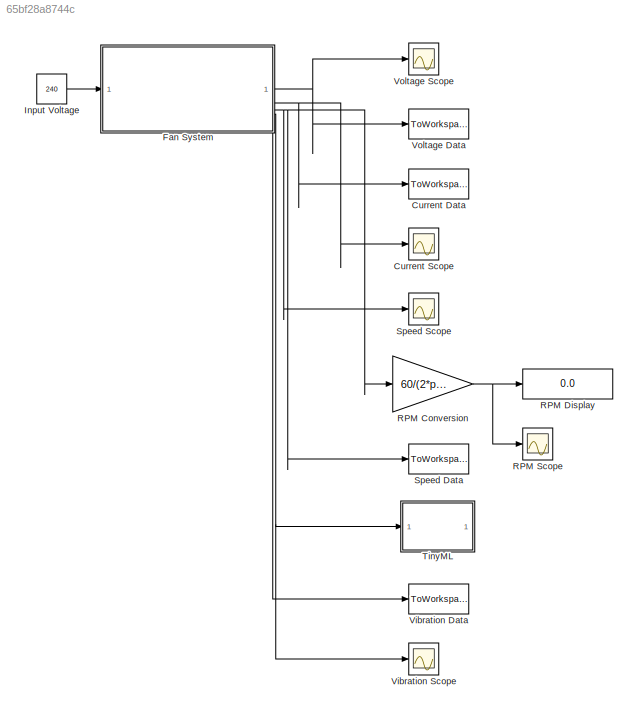
MODEL slx_65bf28a8744c
KIND model
CONFIG AbsTol = 1e-4
CONFIG EnableMultiTasking = off
CONFIG FixedStep = auto
CONFIG MaxStep = 0.001
CONFIG MinStep = auto
CONFIG RelTol = 1e-4
CONFIG SampleTimeConstraint = Unconstrained
CONFIG SolverName = ode23t
CONFIG StartTime = 0.0
CONFIG StopTime = 30
BLOCK [ToWorkspace] Current Data
  FixptAsFi = on
  MaxDataPoints = inf
  SampleTime = 0.001
  SaveFormat = Timeseries
  VariableName = current
BLOCK [Scope] Current Scope
  Floating = off
  NumInputPorts = 1
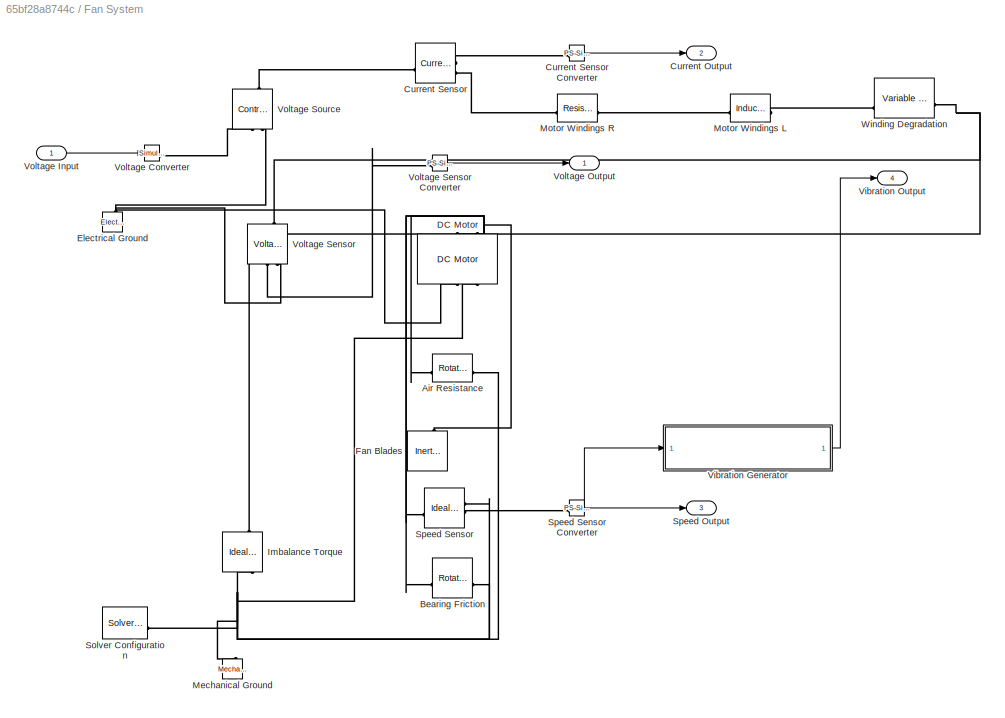
BLOCK [SubSystem] Fan System
BLOCK [Reference] Fan System/Air Resistance  REF=fl_lib/Mechanical/Rotational Elements/Rotational Damper
  SourceBlock = fl_lib/Mechanical/Rotational Elements/Rotational Damper
  SourceType = Rotational Damper
BLOCK [Reference] Fan System/Bearing Friction  REF=fl_lib/Mechanical/Rotational Elements/Rotational Friction
  SourceBlock = fl_lib/Mechanical/Rotational Elements/Rotational Friction
  SourceType = Rotational Friction
BLOCK [Outport] Fan System/Current Output
  Port = 2
BLOCK [Reference] Fan System/Current Sensor  REF=fl_lib/Electrical/Electrical Sensors/Current Sensor
  SourceBlock = fl_lib/Electrical/Electrical Sensors/Current Sensor
  SourceType = Current Sensor
BLOCK [Reference] Fan System/Current Sensor Converter  REF=nesl_utility/PS-Simulink
Converter
  SourceBlock = nesl_utility/PS-Simulink\nConverter
  SourceType = PS-Simulink\nConverter
BLOCK [Reference] Fan System/DC Motor  REF=ee_lib/Electromechanical/Brushed Motors/DC Motor
  NameLocation = right
  SourceBlock = ee_lib/Electromechanical/Brushed Motors/DC Motor
  SourceType = DC Motor
BLOCK [Reference] Fan System/Electrical Ground  REF=fl_lib/Electrical/Electrical Elements/Electrical Reference
  NameLocation = right
  SourceBlock = fl_lib/Electrical/Electrical Elements/Electrical Reference
  SourceType = Electrical Reference
BLOCK [Reference] Fan System/Fan Blades  REF=fl_lib/Mechanical/Rotational Elements/Inertia
  NameLocation = right
  SourceBlock = fl_lib/Mechanical/Rotational Elements/Inertia
  SourceType = Inertia
BLOCK [Reference] Fan System/Imbalance Torque  REF=fl_lib/Mechanical/Mechanical Sources/Ideal Torque Source
  NameLocation = right
  SourceBlock = fl_lib/Mechanical/Mechanical Sources/Ideal Torque Source
  SourceType = Ideal Torque Source
BLOCK [Reference] Fan System/Mechanical Ground  REF=fl_lib/Mechanical/Rotational Elements/Mechanical
Rotational Reference
  NameLocation = right
  SourceBlock = fl_lib/Mechanical/Rotational Elements/Mechanical\nRotational Reference
  SourceType = Mechanical\nRotational Reference
BLOCK [Reference] Fan System/Motor Windings L  REF=fl_lib/Electrical/Electrical Elements/Inductor
  SourceBlock = fl_lib/Electrical/Electrical Elements/Inductor
  SourceType = Inductor
BLOCK [Reference] Fan System/Motor Windings R  REF=fl_lib/Electrical/Electrical Elements/Resistor
  SourceBlock = fl_lib/Electrical/Electrical Elements/Resistor
  SourceType = Resistor
BLOCK [Reference] Fan System/Solver Configuration  REF=nesl_utility/Solver
Configuration
  SourceBlock = nesl_utility/Solver\nConfiguration
  SourceType = Solver\nConfiguration
BLOCK [Outport] Fan System/Speed Output
  Port = 3
BLOCK [Reference] Fan System/Speed Sensor  REF=fl_lib/Mechanical/Mechanical Sensors/Ideal Rotational
Motion Sensor
  SourceBlock = fl_lib/Mechanical/Mechanical Sensors/Ideal Rotational\nMotion Sensor
  SourceType = Ideal Rotational\nMotion Sensor
BLOCK [Reference] Fan System/Speed Sensor Converter  REF=nesl_utility/PS-Simulink
Converter
  SourceBlock = nesl_utility/PS-Simulink\nConverter
  SourceType = PS-Simulink\nConverter
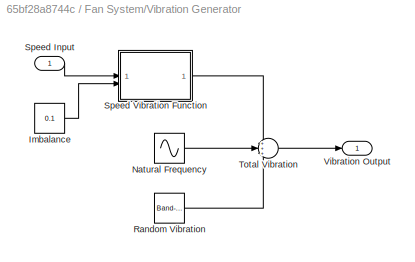
BLOCK [SubSystem] Fan System/Vibration Generator
BLOCK [Constant] Fan System/Vibration Generator/Imbalance
  Value = 0.1
BLOCK [Sin] Fan System/Vibration Generator/Natural Frequency
  Amplitude = 0.05
  Frequency = 50
  SampleTime = 0
BLOCK [Reference] Fan System/Vibration Generator/Random Vibration  REF=simulink/Sources/Band-Limited
White Noise
  SourceBlock = simulink/Sources/Band-Limited\nWhite Noise
  SourceType = Band-Limited White Noise.
BLOCK [Inport] Fan System/Vibration Generator/Speed Input
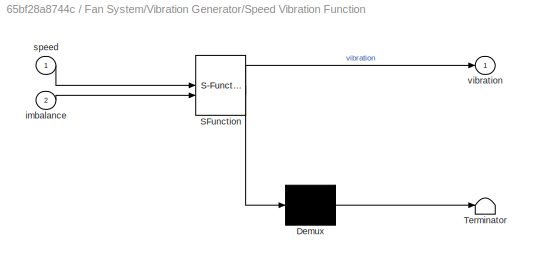
BLOCK [SubSystem] Fan System/Vibration Generator/Speed Vibration Function
  ErrorFcn = Stateflow.Translate.translate
  PermitHierarchicalResolution = ExplicitOnly
  SFBlockType = MATLAB Function
  TreatAsAtomicUnit = on
BLOCK [Demux] Fan System/Vibration Generator/Speed Vibration Function/ Demux 
  Outputs = 1
BLOCK [S-Function] Fan System/Vibration Generator/Speed Vibration Function/ SFunction 
  EnableBusSupport = off
  FunctionName = sf_sfun
  PortCounts = [2 2]
  SFcnIsStateOwnerBlock = off
  SFunctionDeploymentMode = off
  Tag = Stateflow S-Function 2
BLOCK [Terminator] Fan System/Vibration Generator/Speed Vibration Function/ Terminator 
BLOCK [Inport] Fan System/Vibration Generator/Speed Vibration Function/imbalance
  Port = 2
BLOCK [Inport] Fan System/Vibration Generator/Speed Vibration Function/speed
BLOCK [Outport] Fan System/Vibration Generator/Speed Vibration Function/vibration
BLOCK [Sum] Fan System/Vibration Generator/Total Vibration
  Inputs = +++
BLOCK [Outport] Fan System/Vibration Generator/Vibration Output
BLOCK [Outport] Fan System/Vibration Output
  Port = 4
BLOCK [Reference] Fan System/Voltage Converter  REF=nesl_utility/Simulink-PS
Converter
  SourceBlock = nesl_utility/Simulink-PS\nConverter
  SourceType = Simulink-PS\nConverter
BLOCK [Inport] Fan System/Voltage Input
BLOCK [Outport] Fan System/Voltage Output
BLOCK [Reference] Fan System/Voltage Sensor  REF=fl_lib/Electrical/Electrical Sensors/Voltage Sensor
  NameLocation = right
  SourceBlock = fl_lib/Electrical/Electrical Sensors/Voltage Sensor
  SourceType = Voltage Sensor
BLOCK [Reference] Fan System/Voltage Sensor Converter  REF=nesl_utility/PS-Simulink
Converter
  SourceBlock = nesl_utility/PS-Simulink\nConverter
  SourceType = PS-Simulink\nConverter
BLOCK [Reference] Fan System/Voltage Source  REF=fl_lib/Electrical/Electrical Sources/Controlled Voltage
Source
  NameLocation = right
  SourceBlock = fl_lib/Electrical/Electrical Sources/Controlled Voltage\nSource
  SourceType = Controlled Voltage\nSource
BLOCK [Reference] Fan System/Winding Degradation  REF=fl_lib/Electrical/Electrical Elements/Variable Resistor
  SourceBlock = fl_lib/Electrical/Electrical Elements/Variable Resistor
  SourceType = Variable Resistor
BLOCK [Constant] Input Voltage
  Value = 240
BLOCK [Gain] RPM Conversion
  Gain = 60/(2*pi)
BLOCK [Display] RPM Display
  Decimation = 1
BLOCK [Scope] RPM Scope
  Floating = off
  NumInputPorts = 1
BLOCK [ToWorkspace] Speed Data
  FixptAsFi = on
  MaxDataPoints = inf
  SampleTime = 0.001
  SaveFormat = Timeseries
  VariableName = speed
BLOCK [Scope] Speed Scope
  Floating = off
  NumInputPorts = 1
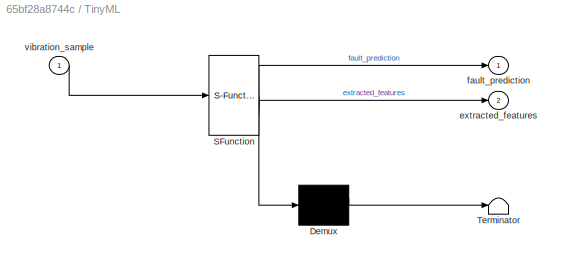
BLOCK [SubSystem] TinyML
  ErrorFcn = Stateflow.Translate.translate
  PermitHierarchicalResolution = ExplicitOnly
  SFBlockType = MATLAB Function
  TreatAsAtomicUnit = on
BLOCK [Demux] TinyML/ Demux 
  Outputs = 1
BLOCK [S-Function] TinyML/ SFunction 
  EnableBusSupport = off
  FunctionName = sf_sfun
  PortCounts = [1 3]
  SFcnIsStateOwnerBlock = off
  SFunctionDeploymentMode = off
  Tag = Stateflow S-Function 1
BLOCK [Terminator] TinyML/ Terminator 
BLOCK [Outport] TinyML/extracted_features
  Port = 2
BLOCK [Outport] TinyML/fault_prediction
BLOCK [Inport] TinyML/vibration_sample
BLOCK [ToWorkspace] Vibration Data
  FixptAsFi = on
  MaxDataPoints = inf
  SampleTime = 0.001
  SaveFormat = Timeseries
  VariableName = vibration
BLOCK [Scope] Vibration Scope
  Floating = off
  NumInputPorts = 1
BLOCK [ToWorkspace] Voltage Data
  FixptAsFi = on
  MaxDataPoints = inf
  SampleTime = 0.001
  SaveFormat = Timeseries
  VariableName = voltage
BLOCK [Scope] Voltage Scope
  Floating = off
  NumInputPorts = 1
LINE Fan System/Current Sensor Converter:1 -> Fan System/Current Output:1
NET Fan System/Speed Sensor Converter:1 -> Fan System/Speed Output:1, Fan System/Vibration Generator:1
LINE Fan System/Vibration Generator/Imbalance:1 -> Fan System/Vibration Generator/Speed Vibration Function:2
LINE Fan System/Vibration Generator/Natural Frequency:1 -> Fan System/Vibration Generator/Total Vibration:2
LINE Fan System/Vibration Generator/Random Vibration:1 -> Fan System/Vibration Generator/Total Vibration:3
LINE Fan System/Vibration Generator/Speed Input:1 -> Fan System/Vibration Generator/Speed Vibration Function:1
LINE Fan System/Vibration Generator/Speed Vibration Function:1 -> Fan System/Vibration Generator/Total Vibration:1
LINE Fan System/Vibration Generator/Total Vibration:1 -> Fan System/Vibration Generator/Vibration Output:1
LINE Fan System/Vibration Generator:1 -> Fan System/Vibration Output:1
LINE Fan System/Voltage Input:1 -> Fan System/Voltage Converter:1
LINE Fan System/Voltage Sensor Converter:1 -> Fan System/Voltage Output:1
NET Fan System:1 -> Voltage Data:1, Voltage Scope:1
NET Fan System:2 -> Current Data:1, Current Scope:1
NET Fan System:3 -> RPM Conversion:1, Speed Data:1, Speed Scope:1
NET Fan System:4 -> TinyML:1, Vibration Data:1, Vibration Scope:1
LINE Input Voltage:1 -> Fan System:1
NET RPM Conversion:1 -> RPM Display:1, RPM Scope:1
PNET net1: Fan System/Air Resistance:LConn1 -- Fan System/Bearing Friction:LConn1 -- Fan System/DC Motor:LConn2 -- Fan System/Fan Blades:LConn1 -- Fan System/Imbalance Torque:LConn1 -- Fan System/Speed Sensor:LConn1
PNET net2: Fan System/Air Resistance:RConn1 -- Fan System/Bearing Friction:RConn1 -- Fan System/DC Motor:RConn2 -- Fan System/Imbalance Torque:RConn2 -- Fan System/Mechanical Ground:LConn1 -- Fan System/Solver Configuration:RConn1 -- Fan System/Speed Sensor:RConn1
PLINE Fan System/Current Sensor Converter:LConn1 -- Fan System/Current Sensor:RConn1
PLINE Fan System/Current Sensor:LConn1 -- Fan System/Voltage Source:LConn1
PLINE Fan System/Current Sensor:RConn2 -- Fan System/Motor Windings R:LConn1
PNET net3: Fan System/DC Motor:LConn1 -- Fan System/Voltage Sensor:LConn1 -- Fan System/Winding Degradation:RConn1
PNET net4: Fan System/DC Motor:RConn1 -- Fan System/Electrical Ground:LConn1 -- Fan System/Voltage Sensor:RConn2 -- Fan System/Voltage Source:RConn2
PLINE Fan System/Motor Windings L:LConn1 -- Fan System/Motor Windings R:RConn1
PLINE Fan System/Motor Windings L:RConn1 -- Fan System/Winding Degradation:LConn2
PLINE Fan System/Speed Sensor Converter:LConn1 -- Fan System/Speed Sensor:RConn2
PLINE Fan System/Voltage Converter:RConn1 -- Fan System/Voltage Source:RConn1
PLINE Fan System/Voltage Sensor Converter:LConn1 -- Fan System/Voltage Sensor:RConn1
note: NET lines group one-source signal fan-out (src -> all destinations, sorted); 1:1 wires keep LINE; PNET lines group multi-terminal physical nets as a canonical sorted terminal list (undirected conserving connections); 2-terminal nets keep the pairwise PLINE form
CHART Fan System/Vibration Generator/Speed Vibration Function states=1 transitions=1
  STATE_LABEL 'eML_blk_kernel()'
  STATE_LABEL 'SCRIPT:\nfunction vibration = speedVibrationFcn(speed, imbalance)\n    persistent t\n    if isempty(t)\n        t = 0;\n    else\n        t = t + 0.01; % Assuming a fixed step size of 0.01s\n    end\n    freq = speed / (2*pi);\n    vibration = imbalance * sin(2*pi*freq*t);\nend\n'
CHART TinyML states=1 transitions=1
  STATE_LABEL 'eML_blk_kernel()'
  STATE_LABEL "SCRIPT:\nfunction [fault_prediction, extracted_features] = tinyMLFcn(vibration_sample)\n    persistent tfliteModel buffer window_size step_size sample_count Fs last_prediction last_features\n    \n    if isempty(tfliteModel)\n        tfliteModel = loadTFLiteModel('fan_fault_detection.tflite');\n        % Define a fixed size for last_prediction based on the model output\n        last_prediction = zeros(15...<+2697ch>"
CHART  states=0 transitions=0
CHART  states=0 transitions=0
